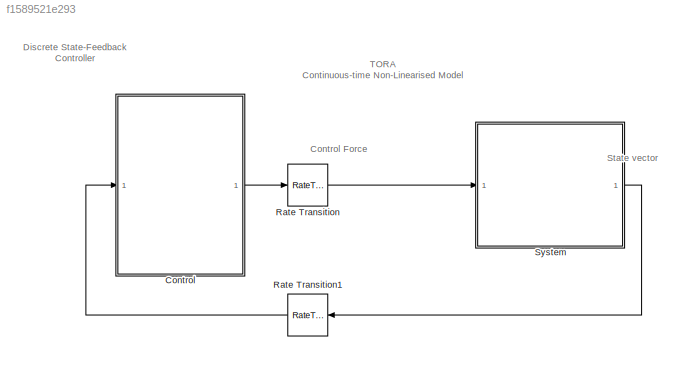
MODEL slx_f1589521e293
KIND model
CONFIG AbsTol = 1e-6
CONFIG EnableMultiTasking = on
CONFIG FixedStep = h
CONFIG MaxStep = auto
CONFIG MinStep = auto
CONFIG RelTol = 1e-6
CONFIG SampleTimeConstraint = Unconstrained
CONFIG Solver = ode4
CONFIG SolverName = ode4
CONFIG StartTime = 0.0
CONFIG StopTime = stoptime
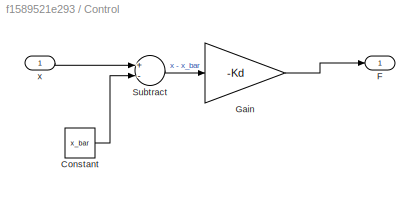
BLOCK [SubSystem] Control
  Ports = [1, 1]
  RequestExecContextInheritance = off
BLOCK [Constant] Control/Constant
  Value = x_bar
BLOCK [Outport] Control/F
  IconDisplay = Port number
  VectorParamsAs1DForOutWhenUnconnected = off
BLOCK [Gain] Control/Gain
  Gain = -Kd
  Multiplication = Matrix(K*u)
  OutDataTypeStr = Inherit: Inherit via internal rule
  ParamDataTypeStr = Inherit: Inherit via internal rule
  SaturateOnIntegerOverflow = off
BLOCK [Sum] Control/Subtract
  InputSameDT = off
  Inputs = +-
  OutDataTypeStr = Inherit: Inherit via internal rule
  Ports = [2, 1]
  SaturateOnIntegerOverflow = off
BLOCK [Inport] Control/x
  IconDisplay = Port number
BLOCK [RateTransition] Rate Transition
  InitialCondition = -Kd*x0_tilde
BLOCK [RateTransition] Rate Transition1
  InitialCondition = x0_tilde
  OutPortSampleTime = Ts
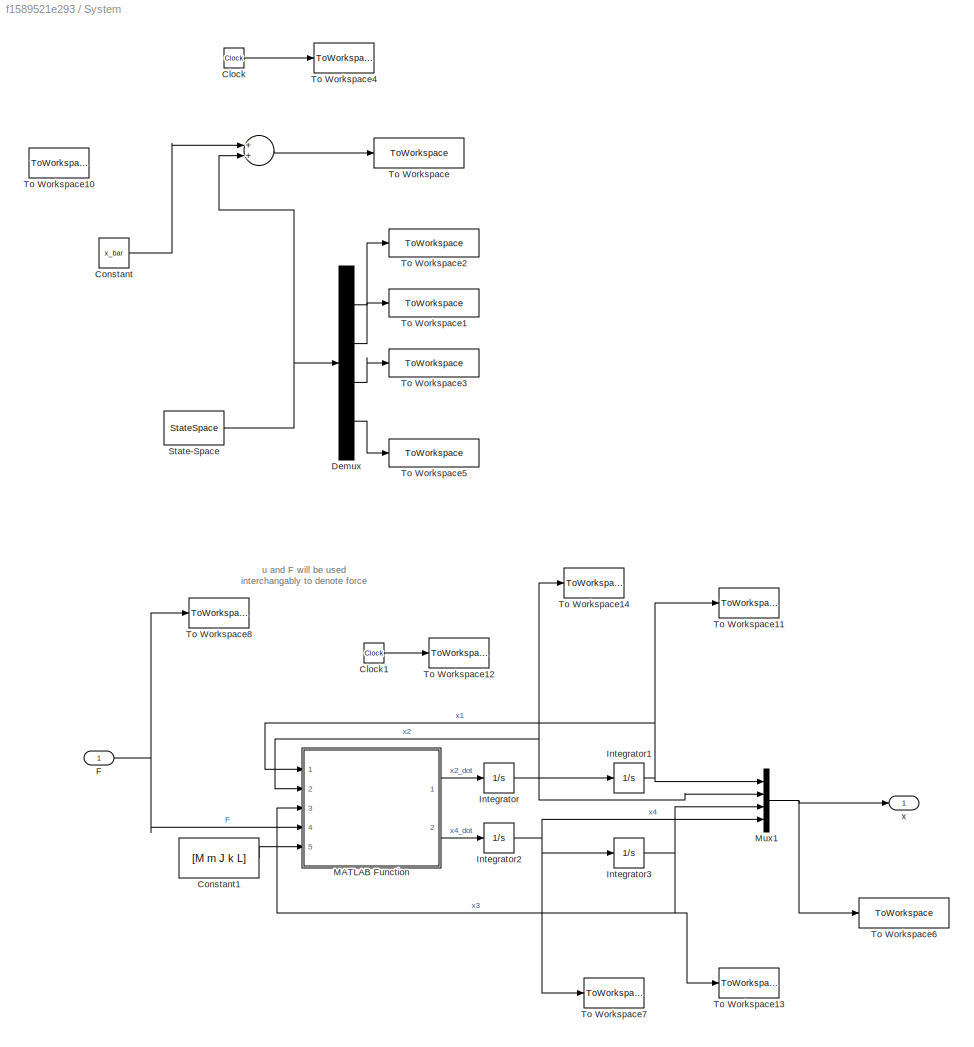
BLOCK [SubSystem] System
  Ports = [1, 1]
  RequestExecContextInheritance = off
BLOCK [Sum] System/ 
  Commented = on
  InputSameDT = off
  OutDataTypeStr = Inherit: Inherit via internal rule
  Ports = [2, 1]
  SaturateOnIntegerOverflow = off
BLOCK [Clock] System/Clock
  Commented = on
BLOCK [Clock] System/Clock1
BLOCK [Constant] System/Constant
  Commented = on
  Value = x_bar
BLOCK [Constant] System/Constant1
  Value = [M m J k L]
BLOCK [Demux] System/Demux
  Commented = on
  DisplayOption = bar
  Ports = [1, 4]
BLOCK [Inport] System/F
  IconDisplay = Port number
BLOCK [Integrator] System/Integrator
  InitialCondition = x0(2)
  Ports = [1, 1]
BLOCK [Integrator] System/Integrator1
  InitialCondition = x0(1)
  Ports = [1, 1]
BLOCK [Integrator] System/Integrator2
  InitialCondition = x0(4)
  Ports = [1, 1]
BLOCK [Integrator] System/Integrator3
  InitialCondition = x0(3)
  Ports = [1, 1]
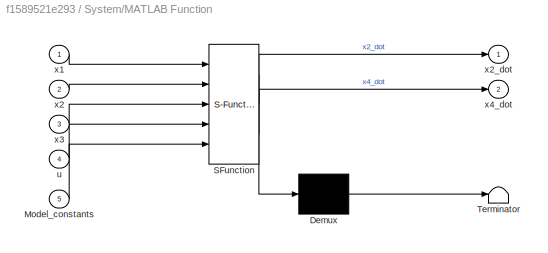
BLOCK [SubSystem] System/MATLAB Function
  ErrorFcn = Stateflow.Translate.translate
  PermitHierarchicalResolution = ExplicitOnly
  Ports = [5, 2]
  RequestExecContextInheritance = off
  SFBlockType = MATLAB Function
  TreatAsAtomicUnit = on
BLOCK [Demux] System/MATLAB Function/ Demux 
  DisplayOption = bar
  Outputs = 1
  Ports = [1, 1]
BLOCK [S-Function] System/MATLAB Function/ SFunction 
  EnableBusSupport = on
  FunctionName = sf_sfun
  PortCounts = [5 3]
  Ports = [5, 3]
  SFcnIsStateOwnerBlock = off
  SFunctionDeploymentMode = off
  Tag = Stateflow S-Function 2
BLOCK [Terminator] System/MATLAB Function/ Terminator 
BLOCK [Inport] System/MATLAB Function/Model_constants
  IconDisplay = Port number
  Port = 5
BLOCK [Inport] System/MATLAB Function/u
  IconDisplay = Port number
  Port = 4
BLOCK [Inport] System/MATLAB Function/x1
  IconDisplay = Port number
BLOCK [Inport] System/MATLAB Function/x2
  IconDisplay = Port number
  Port = 2
BLOCK [Outport] System/MATLAB Function/x2_dot
  IconDisplay = Port number
BLOCK [Inport] System/MATLAB Function/x3
  IconDisplay = Port number
  Port = 3
BLOCK [Outport] System/MATLAB Function/x4_dot
  IconDisplay = Port number
  Port = 2
BLOCK [Mux] System/Mux1
  DisplayOption = bar
  Ports = [4, 1]
BLOCK [StateSpace] System/State-Space
  A = A
  B = B
  C = C
  Commented = on
  D = D
  InitialCondition = x0
  Ports = [1, 1]
BLOCK [ToWorkspace] System/To Workspace
  Commented = on
  FixptAsFi = on
  MaxDataPoints = inf
  Ports = [1]
  SampleTime = -1
  VariableName = x
BLOCK [ToWorkspace] System/To Workspace1
  Commented = on
  FixptAsFi = on
  MaxDataPoints = inf
  Ports = [1]
  SampleTime = -1
  VariableName = x2
BLOCK [ToWorkspace] System/To Workspace10
  Commented = on
  MaxDataPoints = inf
  Ports = [1]
  SampleTime = -1
  VariableName = F
BLOCK [ToWorkspace] System/To Workspace11
  MaxDataPoints = inf
  Ports = [1]
  SampleTime = -1
  VariableName = x1
BLOCK [ToWorkspace] System/To Workspace12
  MaxDataPoints = inf
  Ports = [1]
  SampleTime = -1
  VariableName = t1
BLOCK [ToWorkspace] System/To Workspace13
  MaxDataPoints = inf
  Ports = [1]
  SampleTime = -1
  VariableName = x3
BLOCK [ToWorkspace] System/To Workspace14
  MaxDataPoints = inf
  Ports = [1]
  SampleTime = -1
  VariableName = x2
BLOCK [ToWorkspace] System/To Workspace2
  Commented = on
  FixptAsFi = on
  MaxDataPoints = inf
  Ports = [1]
  SampleTime = -1
  VariableName = x1
BLOCK [ToWorkspace] System/To Workspace3
  Commented = on
  FixptAsFi = on
  MaxDataPoints = inf
  Ports = [1]
  SampleTime = -1
  VariableName = x3
BLOCK [ToWorkspace] System/To Workspace4
  Commented = on
  MaxDataPoints = inf
  Ports = [1]
  SampleTime = -1
  VariableName = t
BLOCK [ToWorkspace] System/To Workspace5
  Commented = on
  FixptAsFi = on
  MaxDataPoints = inf
  Ports = [1]
  SampleTime = -1
  VariableName = x4
BLOCK [ToWorkspace] System/To Workspace6
  FixptAsFi = on
  MaxDataPoints = inf
  Ports = [1]
  SampleTime = -1
  VariableName = x
BLOCK [ToWorkspace] System/To Workspace7
  MaxDataPoints = inf
  Ports = [1]
  SampleTime = -1
  VariableName = x4
BLOCK [ToWorkspace] System/To Workspace8
  MaxDataPoints = inf
  Ports = [1]
  SampleTime = -1
  VariableName = F1
BLOCK [Outport] System/x
  IconDisplay = Port number
  VectorParamsAs1DForOutWhenUnconnected = off
ANNOTATION (root): TORA Continuous-time Non-Linearised Model
ANNOTATION (root): Discrete State-Feedback Controller
ANNOTATION (root): Control Force
ANNOTATION (root): State vector
ANNOTATION System: u and F will be used interchangably to denote force
LINE Control/Constant:1 -> Control/Subtract:2
LINE Control/Gain:1 -> Control/F:1
LINE Control/Subtract:1 -> Control/Gain:1
LINE Control/x:1 -> Control/Subtract:1
LINE Control:1 -> Rate Transition:1
LINE Rate Transition1:1 -> Control:1
LINE Rate Transition:1 -> System:1
LINE System/ :1 -> System/To Workspace:1
LINE System/Clock1:1 -> System/To Workspace12:1
LINE System/Clock:1 -> System/To Workspace4:1
LINE System/Constant1:1 -> System/MATLAB Function:5
LINE System/Constant:1 -> System/ :1
LINE System/Demux:1 -> System/To Workspace2:1
LINE System/Demux:2 -> System/To Workspace1:1
LINE System/Demux:3 -> System/To Workspace3:1
LINE System/Demux:4 -> System/To Workspace5:1
NET System/F:1 -> System/MATLAB Function:4, System/To Workspace8:1
NET System/Integrator1:1 -> System/MATLAB Function:1, System/Mux1:1, System/To Workspace11:1
NET System/Integrator2:1 -> System/Integrator3:1, System/Mux1:4, System/To Workspace7:1
NET System/Integrator3:1 -> System/MATLAB Function:3, System/Mux1:3, System/To Workspace13:1
NET System/Integrator:1 -> System/Integrator1:1, System/MATLAB Function:2, System/Mux1:2, System/To Workspace14:1
LINE System/MATLAB Function:1 -> System/Integrator:1
LINE System/MATLAB Function:2 -> System/Integrator2:1
NET System/Mux1:1 -> System/To Workspace6:1, System/x:1
NET System/State-Space:1 -> System/ :2, System/Demux:1
LINE System:1 -> Rate Transition1:1
note: NET lines group one-source signal fan-out (src -> all destinations, sorted); 1:1 wires keep LINE
CHART System/MATLAB Function states=1 transitions=1
  STATE_LABEL 'eML_blk_kernel()'
  STATE_LABEL 'SCRIPT:\nfunction [x2_dot,x4_dot] = NonLinearEquations(x1,x2,x3,u,Model_constants)\n\n%Get Model Constants:\nM = Model_constants(1);\nm = Model_constants(2);\nJ = Model_constants(3);\nk = Model_constants(4);\nL = Model_constants(5);\n\n% Equation for x2_dot\nx2_dot_nancy = (((m+M)*u)-(m*L*cos(x1)*(m*L*(x2^2)*sin(x1)-(k*(x3)))));\nx2_dot_donkey = ((J+(m*(L^2))*(m+M))-((m^2)*(L^2)*cos(x1)^2));\nx2_dot = x2_dot_n...<+228ch>'
